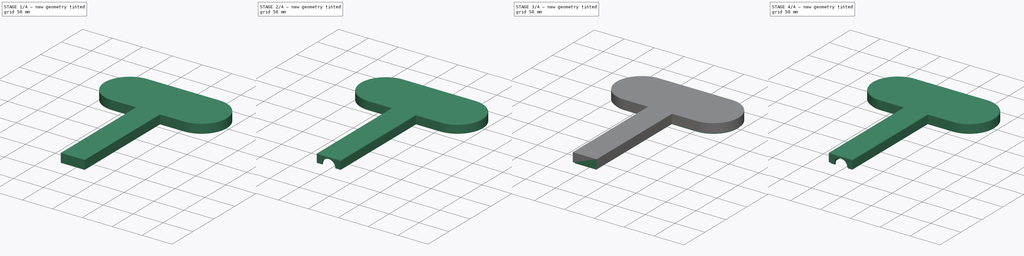
[diagram: build sequence overview — one tinted view per stage of 4, left to right]
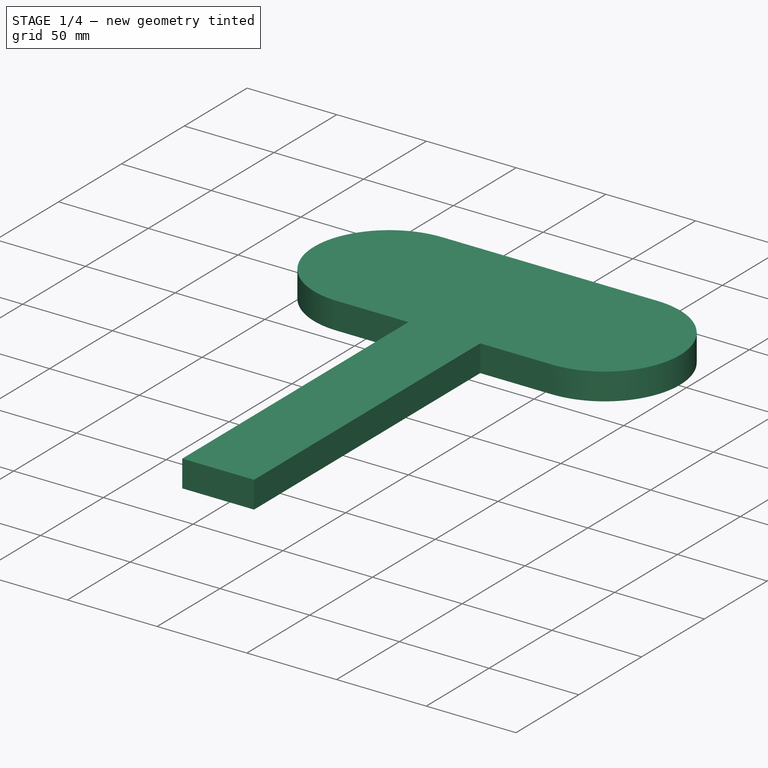
[diagram: stage 1 of 4 — iso view after this stage's code; geometry added in this stage tinted green]
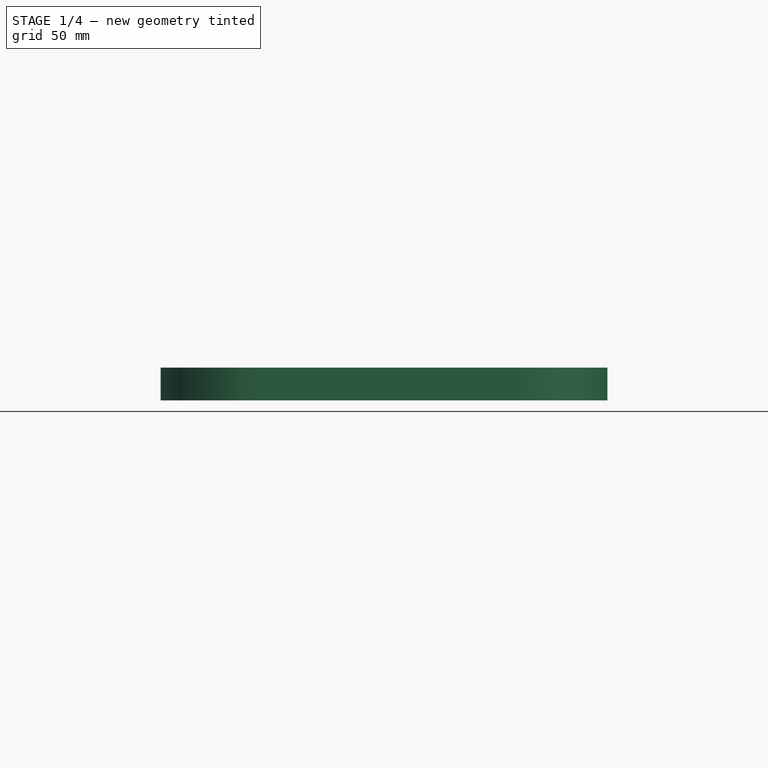
[diagram: stage 1 of 4 — front view after this stage's code; geometry added in this stage tinted green]
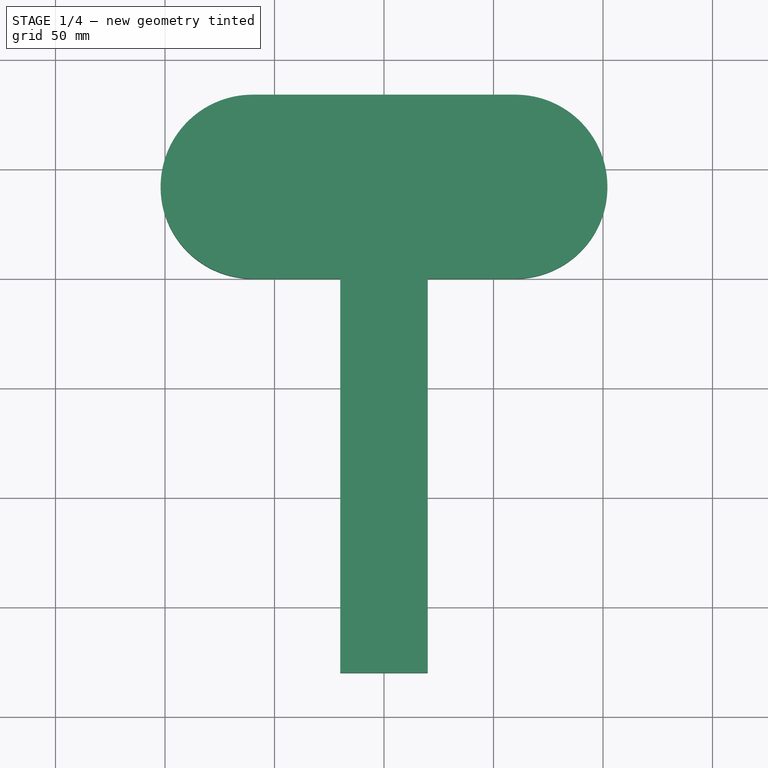
[diagram: stage 1 of 4 — top view after this stage's code; geometry added in this stage tinted green]
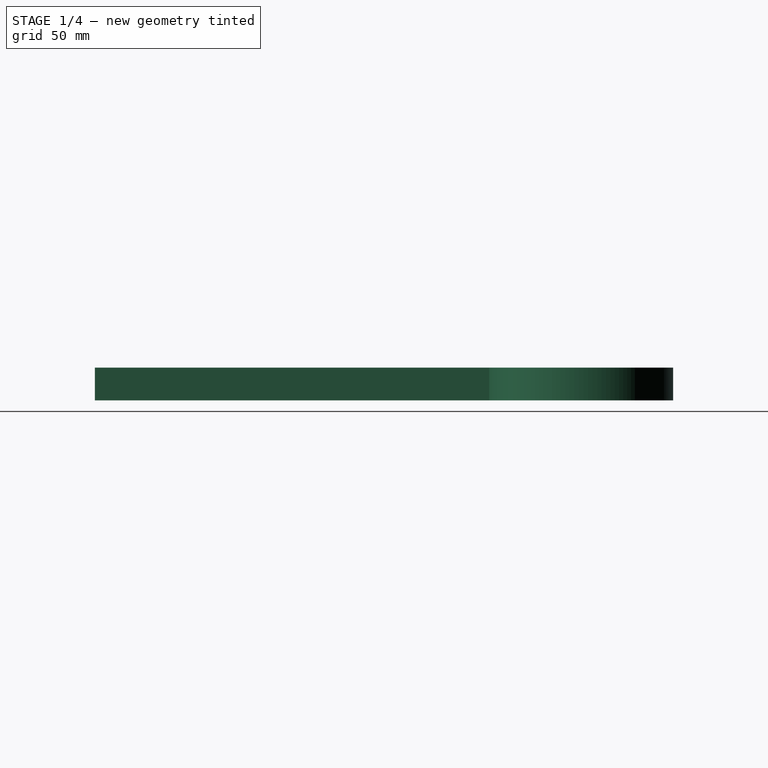
[diagram: stage 1 of 4 — right view after this stage's code; geometry added in this stage tinted green]
FCSTD DOCUMENT  (FreeCAD 0.19R24291 (Git))
Label: 2ch_coil_housing
License: All rights reserved
LicenseURL: http://en.wikipedia.org/wiki/All_rights_reserved
objects: Sketcher::SketchObject×7, PartDesign::Pocket×4, PartDesign::Pad×3, PartDesign::Fillet×2, PartDesign::Body×2
note: 27 computed .brp shape members not serialized (recipe doc carries the construction recipe); baked Part::Feature solids carry a one-line shape summary decoded from their .brp

FEATURE [Sketcher::SketchObject] Sketch003
  FullyConstrained = true
  MapMode = 5
  Support = -> [XY_Plane001]
  sketch-geometry (8):
    g0: LineSegment StartX=-20 StartY=-180 StartZ=0 EndX=20 EndY=-180 EndZ=0
    g1: LineSegment StartX=20 StartY=-180 StartZ=0 EndX=20 EndY=0 EndZ=0
    g2: LineSegment StartX=20 StartY=0 StartZ=0 EndX=60 EndY=0 EndZ=0
    g3: ArcOfCircle CenterX=60 CenterY=42 CenterZ=0 NormalX=0 NormalY=0 NormalZ=1 AngleXU=0 Radius=42 StartAngle=4.71239 EndAngle=7.85398
    g4: LineSegment StartX=60 StartY=84 StartZ=0 EndX=-60 EndY=84 EndZ=0
    g5: ArcOfCircle CenterX=-60 CenterY=42 CenterZ=0 NormalX=0 NormalY=0 NormalZ=1 AngleXU=0 Radius=42 StartAngle=1.5708 EndAngle=4.71239
    g6: LineSegment StartX=-60 StartY=0 StartZ=0 EndX=-20 EndY=0 EndZ=0
    g7: LineSegment StartX=-20 StartY=0 StartZ=0 EndX=-20 EndY=-180 EndZ=0
  constraints (20):
    c: Coincident(g0,g1)
    c: Vertical(g1)
    c: Coincident(g1,g2)
    c: Horizontal(g2)
    c: Tangent(g2,g3) = -1.5708
    c: Horizontal(g4)
    c: Tangent(g4,g5) = -1.5708
    c: Coincident(g6,g7)
    c: Coincident(g7,g0)
    c: Vertical(g7)
    c: Horizontal(g6)
    c: Symmetric(g0,g0,g-2)
    c: Symmetric(g5,g2,g-2)
    c: Tangent(g5,g6) = -1.5708
    c: Tangent(g3,g4) = -1.5708
    c: Radius(g5) = 42
    c: DistanceX(g6,g1) = 40
    c: DistanceY(g0,g1) = 180
    c: Horizontal(g6,g-1)
    c: DistanceX(g4,g4) = 120
FEATURE [PartDesign::Pad] Pad002
  Direction = (1,1,1)
  Length = 15
  Length2 = 100
  Profile = -> Sketch003
  Refine = true
  Type = 0
FEATURE [Sketcher::SketchObject] Sketch004
  FullyConstrained = true
  MapMode = 5
  Support = -> [XY_Plane001]
  sketch-geometry (8):
    g0: LineSegment StartX=-18 StartY=-178 StartZ=0 EndX=18 EndY=-178 EndZ=0
    g1: LineSegment StartX=18 StartY=-178 StartZ=0 EndX=18 EndY=2 EndZ=0
    g2: LineSegment StartX=18 StartY=2 StartZ=0 EndX=60 EndY=2 EndZ=0
    g3: ArcOfCircle CenterX=60 CenterY=42 CenterZ=0 NormalX=0 NormalY=0 NormalZ=1 AngleXU=0 Radius=40 StartAngle=4.71239 EndAngle=7.85398
    g4: LineSegment StartX=60 StartY=82 StartZ=0 EndX=-60 EndY=82 EndZ=0
    g5: ArcOfCircle CenterX=-60 CenterY=42 CenterZ=0 NormalX=0 NormalY=0 NormalZ=1 AngleXU=0 Radius=40 StartAngle=1.5708 EndAngle=4.71239
    g6: LineSegment StartX=-60 StartY=2 StartZ=0 EndX=-18 EndY=2 EndZ=0
    g7: LineSegment StartX=-18 StartY=2 StartZ=0 EndX=-18 EndY=-178 EndZ=0
  constraints (21):
    c: Coincident(g0,g1)
    c: Vertical(g1)
    c: Coincident(g1,g2)
    c: Horizontal(g2)
    c: Tangent(g2,g3) = -1.5708
    c: Horizontal(g4)
    c: Tangent(g4,g5) = -1.5708
    c: Coincident(g6,g7)
    c: Coincident(g7,g0)
    c: Vertical(g7)
    c: Horizontal(g6)
    c: Symmetric(g0,g0,g-2)
    c: Symmetric(g5,g2,g-2)
    c: Tangent(g5,g6) = -1.5708
    c: Tangent(g3,g4) = -1.5708
    c: Radius(g5) = 40
    c: DistanceX(g6,g1) = 36
    c: DistanceY(g0,g1) = 180
    c: Horizontal(g6,g-1)
    c: DistanceX(g4,g4) = 120
    c: DistanceY(g-1,g5) = 2
FEATURE [PartDesign::Pocket] Pocket001
  BaseFeature = -> Pad002
  Length = 13
  Length2 = 100
  Profile = -> Sketch004
  Refine = true
  Reversed = true
  Type = 0
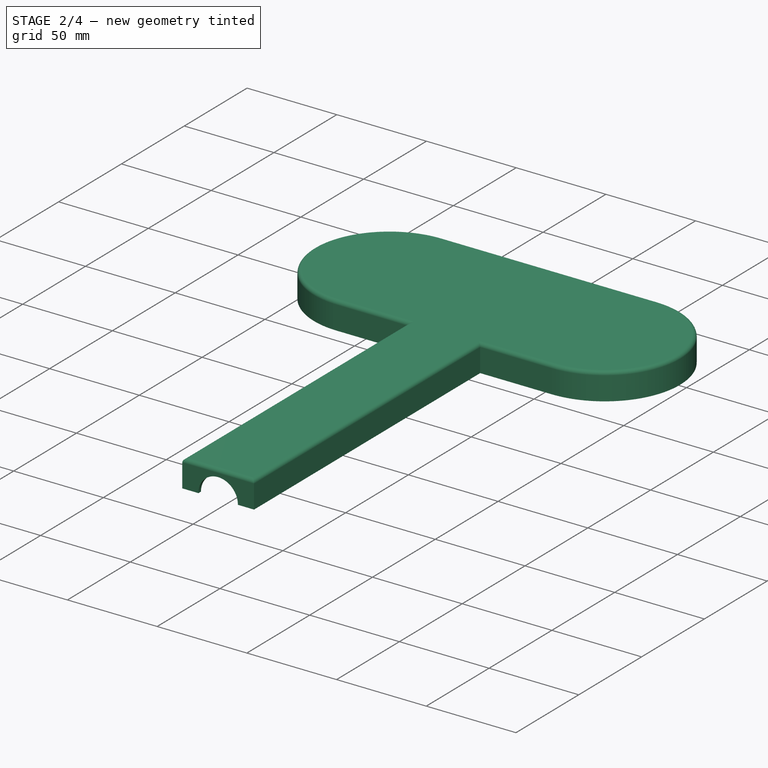
[diagram: stage 2 of 4 — iso view after this stage's code; geometry added in this stage tinted green]
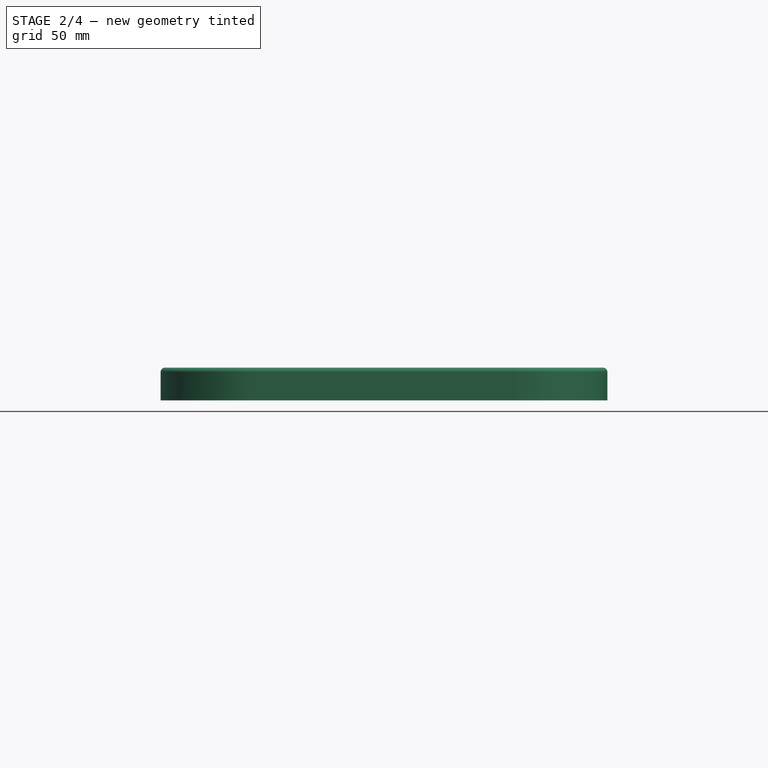
[diagram: stage 2 of 4 — front view after this stage's code; geometry added in this stage tinted green]
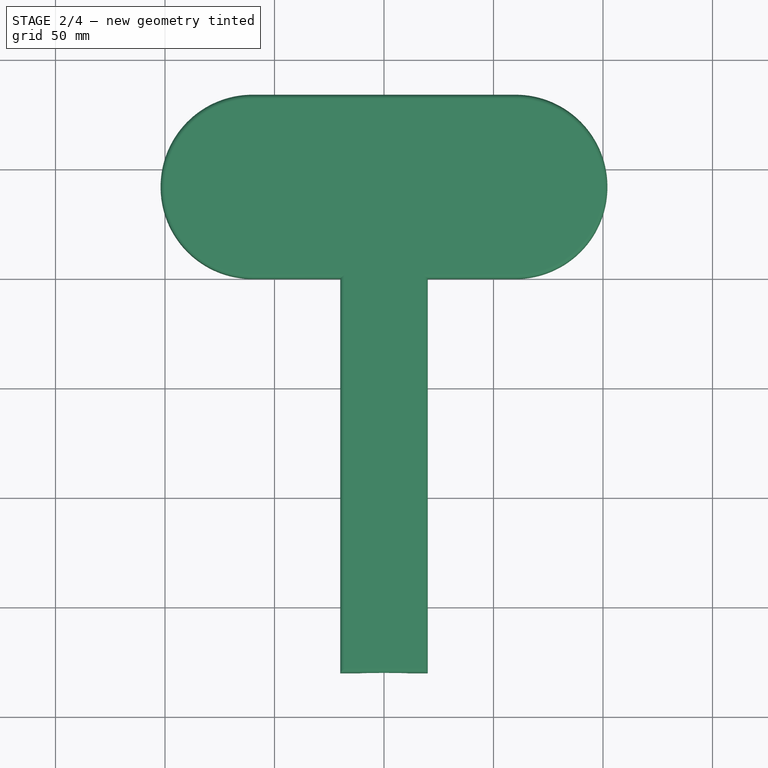
[diagram: stage 2 of 4 — top view after this stage's code; geometry added in this stage tinted green]
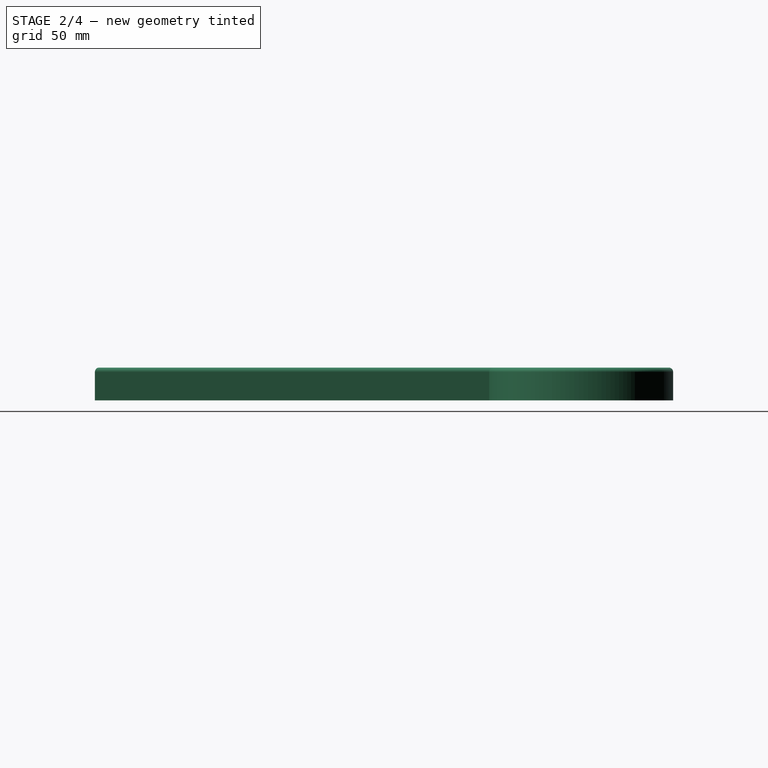
[diagram: stage 2 of 4 — right view after this stage's code; geometry added in this stage tinted green]
FEATURE [PartDesign::Fillet] Fillet001
  Base = -> Pocket001 [Face5]
  BaseFeature = -> Pocket001
  Radius = 2
  Refine = true
  SupportTransform = false
FEATURE [PartDesign::Body] Body  label="base"
  Group = -> [Sketch,Pad,Sketch001,Pad001,Sketch002,Pocket,Fillet,Sketch005,Pocket002]
  Origin = -> Origin
  Tip = -> Pocket002
FEATURE [Sketcher::SketchObject] Sketch006
  AttachmentOffset = pos=(0,0,180) rot=(0,0,1;0rad)
  FullyConstrained = true
  MapMode = 5
  Placement = pos=(0,-180,4e-14) rot=(1,0,0;1.5708rad)
  Support = -> [XZ_Plane001]
  sketch-geometry (1):
    g0: Circle CenterX=0 CenterY=0 CenterZ=0 NormalX=0 NormalY=0 NormalZ=1 AngleXU=0 Radius=11
  constraints (2):
    c: Coincident(g0,g-1)
    c: Radius(g0) = 11
FEATURE [PartDesign::Pocket] Pocket003
  BaseFeature = -> Fillet001
  Length = 5
  Length2 = 100
  Profile = -> Sketch006
  Refine = true
  Type = 0
FEATURE [PartDesign::Body] Body001  label="cover"
  Group = -> [Sketch003,Pad002,Sketch004,Pocket001,Fillet001,Sketch006,Pocket003]
  Origin = -> Origin001
  Placement = pos=(0,0,20) rot=(0,0,1;0rad)
  Tip = -> Pocket003
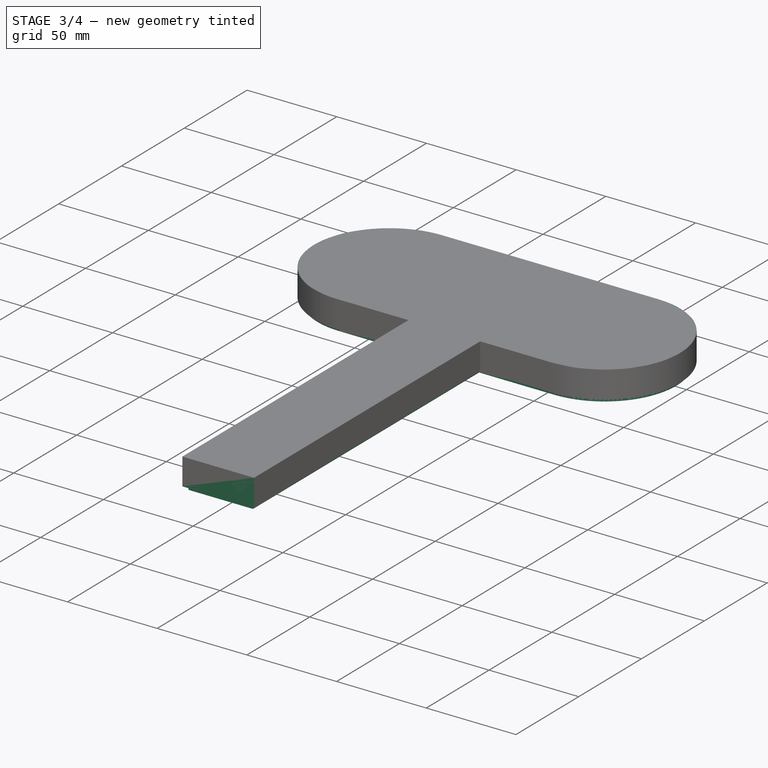
[diagram: stage 3 of 4 — iso view after this stage's code; geometry added in this stage tinted green]
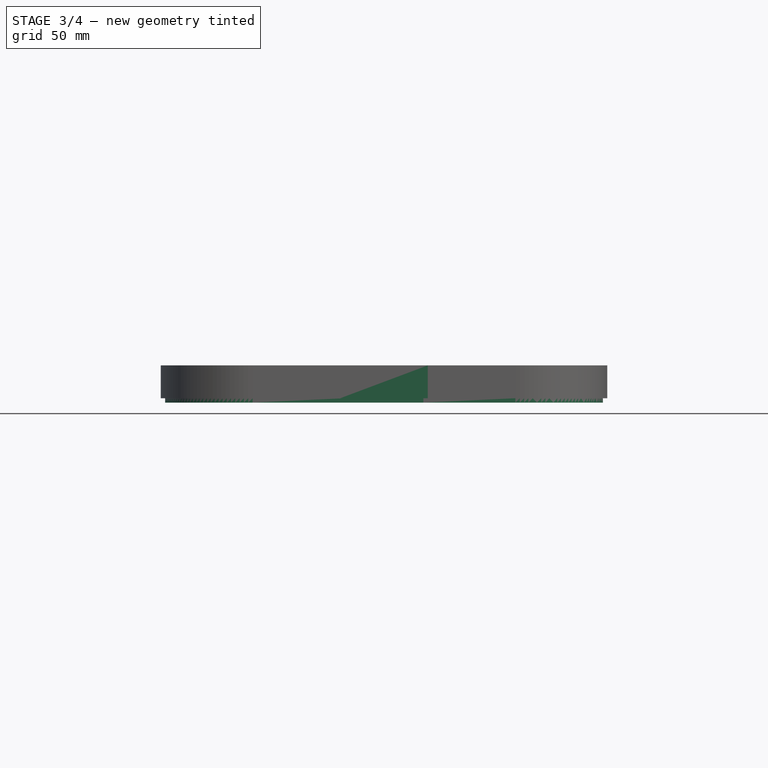
[diagram: stage 3 of 4 — front view after this stage's code; geometry added in this stage tinted green]
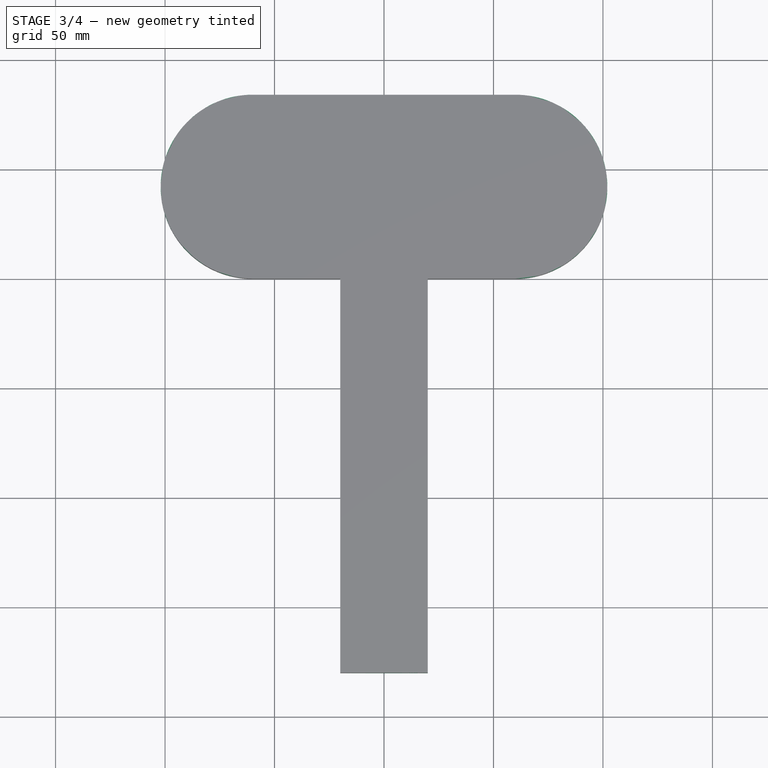
[diagram: stage 3 of 4 — top view after this stage's code; geometry added in this stage tinted green]
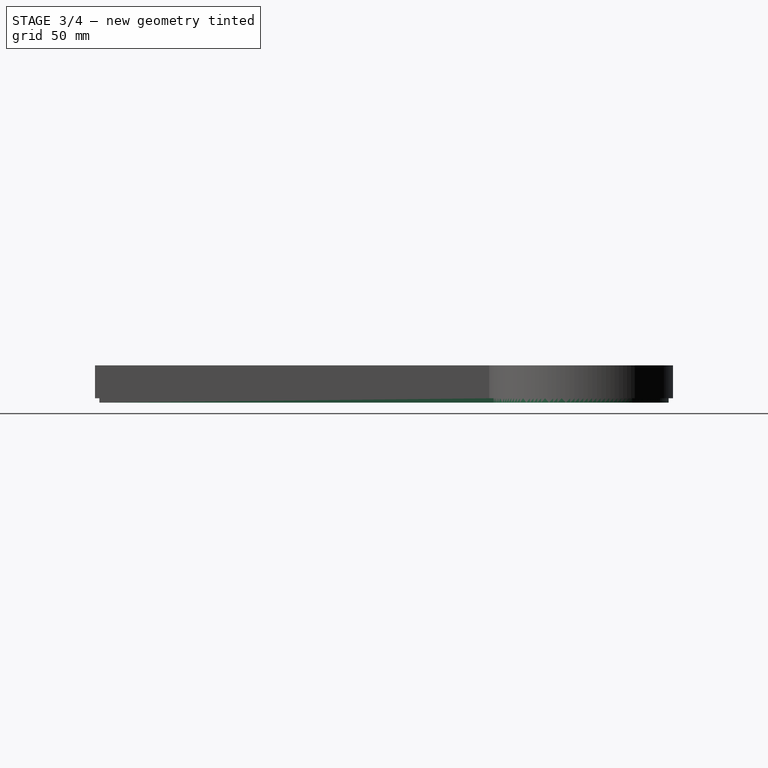
[diagram: stage 3 of 4 — right view after this stage's code; geometry added in this stage tinted green]
FEATURE [Sketcher::SketchObject] Sketch
  FullyConstrained = true
  MapMode = 5
  Support = -> [XY_Plane]
  sketch-geometry (8):
    g0: LineSegment StartX=-20 StartY=-180 StartZ=0 EndX=20 EndY=-180 EndZ=0
    g1: LineSegment StartX=20 StartY=-180 StartZ=0 EndX=20 EndY=0 EndZ=0
    g2: LineSegment StartX=20 StartY=0 StartZ=0 EndX=60 EndY=0 EndZ=0
    g3: ArcOfCircle CenterX=60 CenterY=42 CenterZ=0 NormalX=0 NormalY=0 NormalZ=1 AngleXU=0 Radius=42 StartAngle=4.71239 EndAngle=7.85398
    g4: LineSegment StartX=60 StartY=84 StartZ=0 EndX=-60 EndY=84 EndZ=0
    g5: ArcOfCircle CenterX=-60 CenterY=42 CenterZ=0 NormalX=0 NormalY=0 NormalZ=1 AngleXU=0 Radius=42 StartAngle=1.5708 EndAngle=4.71239
    g6: LineSegment StartX=-60 StartY=0 StartZ=0 EndX=-20 EndY=0 EndZ=0
    g7: LineSegment StartX=-20 StartY=0 StartZ=0 EndX=-20 EndY=-180 EndZ=0
  constraints (20):
    c: Coincident(g0,g1)
    c: Vertical(g1)
    c: Coincident(g1,g2)
    c: Horizontal(g2)
    c: Tangent(g2,g3) = -1.5708
    c: Horizontal(g4)
    c: Tangent(g4,g5) = -1.5708
    c: Coincident(g6,g7)
    c: Coincident(g7,g0)
    c: Vertical(g7)
    c: Horizontal(g6)
    c: Symmetric(g0,g0,g-2)
    c: Symmetric(g5,g2,g-2)
    c: Tangent(g5,g6) = -1.5708
    c: Tangent(g3,g4) = -1.5708
    c: Radius(g5) = 42
    c: DistanceX(g6,g1) = 40
    c: DistanceY(g0,g1) = 180
    c: Horizontal(g6,g-1)
    c: DistanceX(g4,g4) = 120
FEATURE [PartDesign::Pad] Pad
  Direction = (1,1,1)
  Length = 15
  Length2 = 100
  Profile = -> Sketch
  Refine = true
  Type = 0
FEATURE [Sketcher::SketchObject] Sketch001
  FullyConstrained = true
  MapMode = 5
  Support = -> [XY_Plane]
  sketch-geometry (8):
    g0: LineSegment StartX=-18 StartY=-178 StartZ=0 EndX=18 EndY=-178 EndZ=0
    g1: LineSegment StartX=18 StartY=-178 StartZ=0 EndX=18 EndY=2 EndZ=0
    g2: LineSegment StartX=18 StartY=2 StartZ=0 EndX=60 EndY=2 EndZ=0
    g3: ArcOfCircle CenterX=60 CenterY=42 CenterZ=0 NormalX=0 NormalY=0 NormalZ=1 AngleXU=0 Radius=40 StartAngle=4.71239 EndAngle=7.85398
    g4: LineSegment StartX=60 StartY=82 StartZ=0 EndX=-60 EndY=82 EndZ=0
    g5: ArcOfCircle CenterX=-60 CenterY=42 CenterZ=0 NormalX=0 NormalY=0 NormalZ=1 AngleXU=0 Radius=40 StartAngle=1.5708 EndAngle=4.71239
    g6: LineSegment StartX=-60 StartY=2 StartZ=0 EndX=-18 EndY=2 EndZ=0
    g7: LineSegment StartX=-18 StartY=2 StartZ=0 EndX=-18 EndY=-178 EndZ=0
  constraints (21):
    c: Coincident(g0,g1)
    c: Vertical(g1)
    c: Coincident(g1,g2)
    c: Horizontal(g2)
    c: Tangent(g2,g3) = -1.5708
    c: Horizontal(g4)
    c: Tangent(g4,g5) = -1.5708
    c: Coincident(g6,g7)
    c: Coincident(g7,g0)
    c: Vertical(g7)
    c: Horizontal(g6)
    c: Symmetric(g0,g0,g-2)
    c: Symmetric(g5,g2,g-2)
    c: Tangent(g5,g6) = -1.5708
    c: Tangent(g3,g4) = -1.5708
    c: Radius(g5) = 40
    c: DistanceX(g6,g1) = 36
    c: DistanceY(g0,g1) = 180
    c: Horizontal(g6,g-1)
    c: DistanceX(g4,g4) = 120
    c: DistanceY(g-1,g5) = 2
FEATURE [PartDesign::Pad] Pad001
  BaseFeature = -> Pad
  Direction = (1,1,1)
  Length = 2
  Length2 = 100
  Profile = -> Sketch001
  Refine = true
  Reversed = true
  Type = 0
FEATURE [Sketcher::SketchObject] Sketch002
  AttachmentOffset = pos=(0,0,-2) rot=(0,0,1;0rad)
  FullyConstrained = true
  MapMode = 5
  Placement = pos=(0,0,-2) rot=(0,0,1;0rad)
  Support = -> [XY_Plane]
  sketch-geometry (8):
    g0: LineSegment StartX=-17 StartY=-176 StartZ=0 EndX=17 EndY=-176 EndZ=0
    g1: LineSegment StartX=17 StartY=-176 StartZ=0 EndX=17 EndY=4 EndZ=0
    g2: LineSegment StartX=17 StartY=4 StartZ=0 EndX=60 EndY=4 EndZ=0
    g3: ArcOfCircle CenterX=60 CenterY=42 CenterZ=0 NormalX=0 NormalY=0 NormalZ=1 AngleXU=0 Radius=38 StartAngle=4.71239 EndAngle=7.85398
    g4: LineSegment StartX=60 StartY=80 StartZ=0 EndX=-60 EndY=80 EndZ=0
    g5: ArcOfCircle CenterX=-60 CenterY=42 CenterZ=0 NormalX=0 NormalY=0 NormalZ=1 AngleXU=0 Radius=38 StartAngle=1.5708 EndAngle=4.71239
    g6: LineSegment StartX=-60 StartY=4 StartZ=0 EndX=-17 EndY=4 EndZ=0
    g7: LineSegment StartX=-17 StartY=4 StartZ=0 EndX=-17 EndY=-176 EndZ=0
  constraints (21):
    c: Coincident(g0,g1)
    c: Vertical(g1)
    c: Coincident(g1,g2)
    c: Horizontal(g2)
    c: Tangent(g2,g3) = -1.5708
    c: Horizontal(g4)
    c: Tangent(g4,g5) = -1.5708
    c: Coincident(g6,g7)
    c: Coincident(g7,g0)
    c: Vertical(g7)
    c: Horizontal(g6)
    c: Symmetric(g0,g0,g-2)
    c: Symmetric(g5,g2,g-2)
    c: Tangent(g5,g6) = -1.5708
    c: Tangent(g3,g4) = -1.5708
    c: Radius(g5) = 38
    c: DistanceX(g6,g1) = 34
    c: DistanceY(g0,g1) = 180
    c: Horizontal(g6,g-1)
    c: DistanceX(g4,g4) = 120
    c: DistanceY(g-1,g5) = 4
FEATURE [PartDesign::Pocket] Pocket
  BaseFeature = -> Pad001
  Length = 15
  Length2 = 100
  Profile = -> Sketch002
  Refine = true
  Reversed = true
  Type = 0
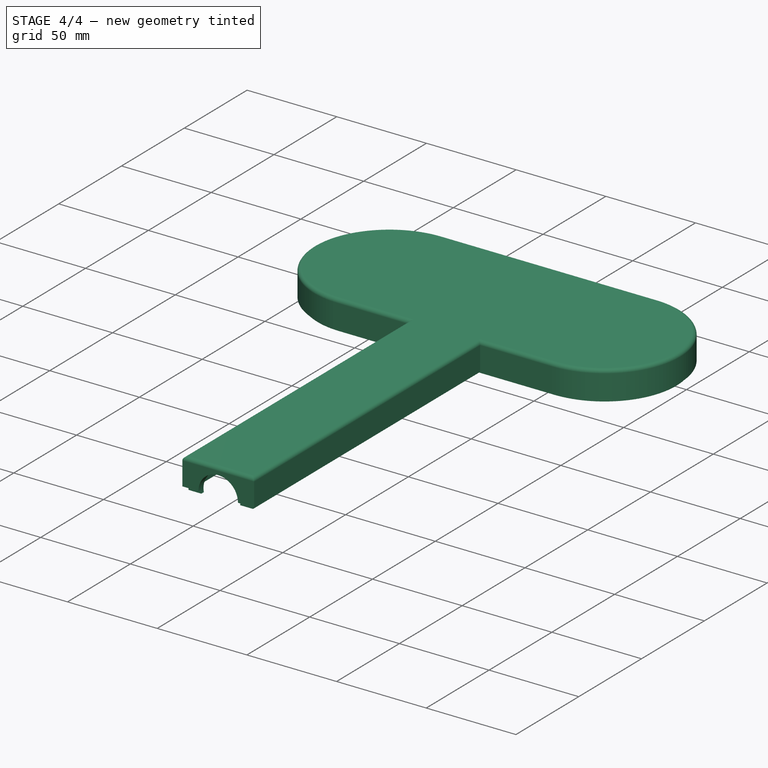
[diagram: stage 4 of 4 — iso view after this stage's code; geometry added in this stage tinted green]
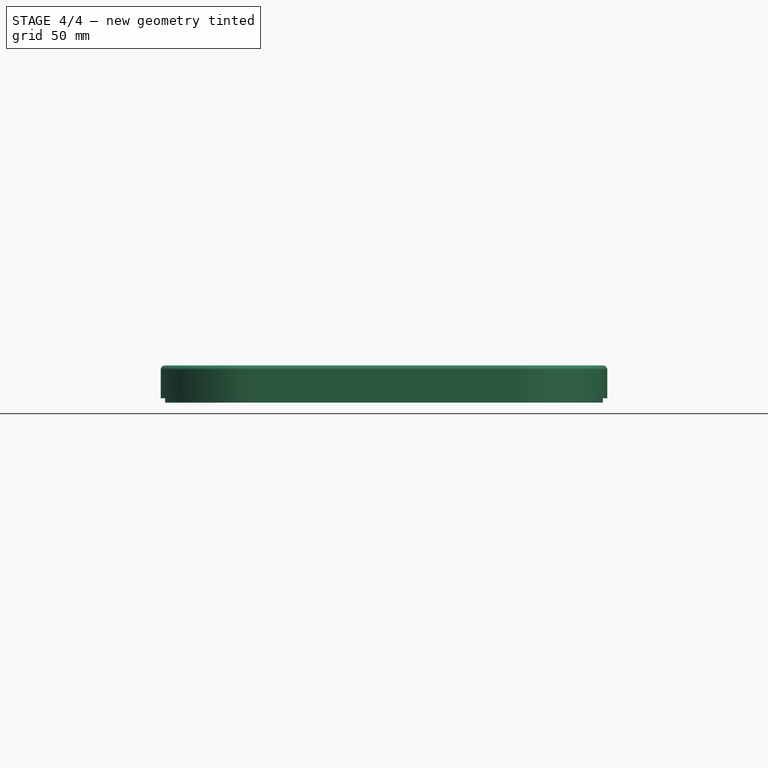
[diagram: stage 4 of 4 — front view after this stage's code; geometry added in this stage tinted green]
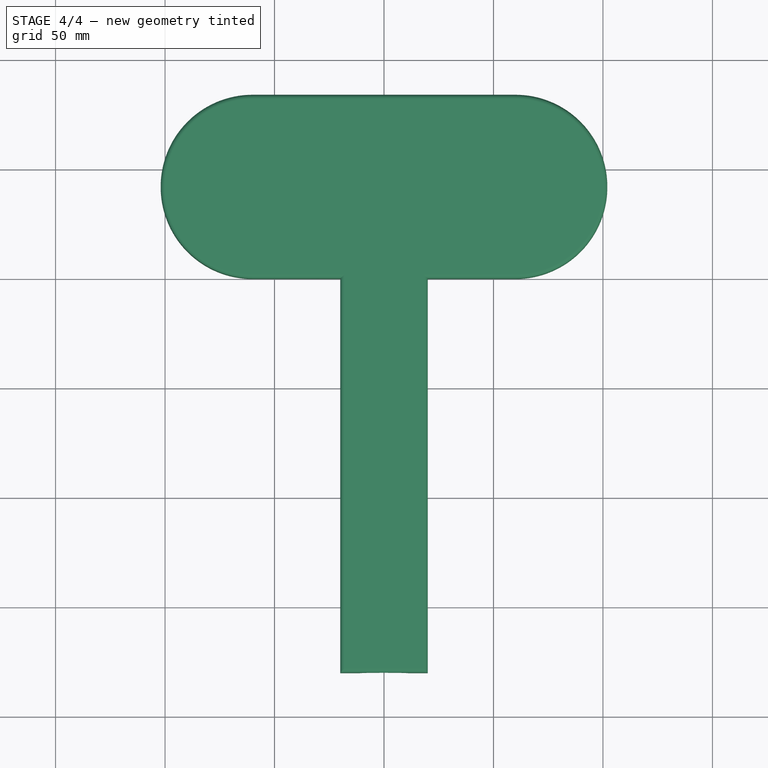
[diagram: stage 4 of 4 — top view after this stage's code; geometry added in this stage tinted green]
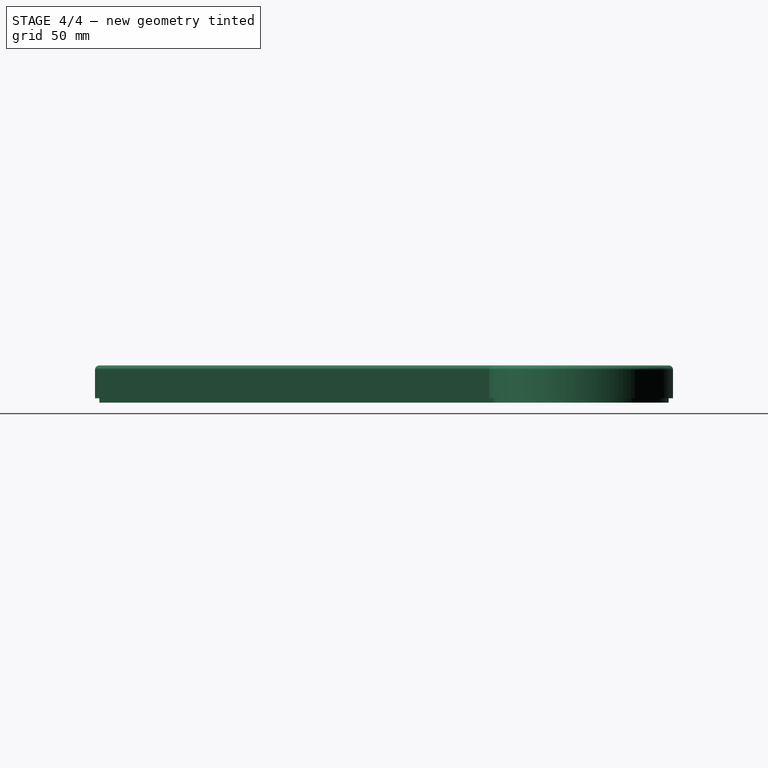
[diagram: stage 4 of 4 — right view after this stage's code; geometry added in this stage tinted green]
FEATURE [PartDesign::Fillet] Fillet
  Base = -> Pocket [Face5]
  BaseFeature = -> Pocket
  Radius = 2
  Refine = true
  SupportTransform = false
FEATURE [Sketcher::SketchObject] Sketch005
  AttachmentOffset = pos=(0,0,180) rot=(0,0,1;0rad)
  FullyConstrained = true
  MapMode = 5
  Placement = pos=(0,-180,4e-14) rot=(1,0,0;1.5708rad)
  Support = -> [XZ_Plane]
  sketch-geometry (1):
    g0: Circle CenterX=0 CenterY=0 CenterZ=0 NormalX=0 NormalY=0 NormalZ=1 AngleXU=0 Radius=11
  constraints (2):
    c: Coincident(g0,g-1)
    c: Radius(g0) = 11
FEATURE [PartDesign::Pocket] Pocket002
  BaseFeature = -> Fillet
  Length = 5
  Length2 = 100
  Profile = -> Sketch005
  Refine = true
  Type = 0
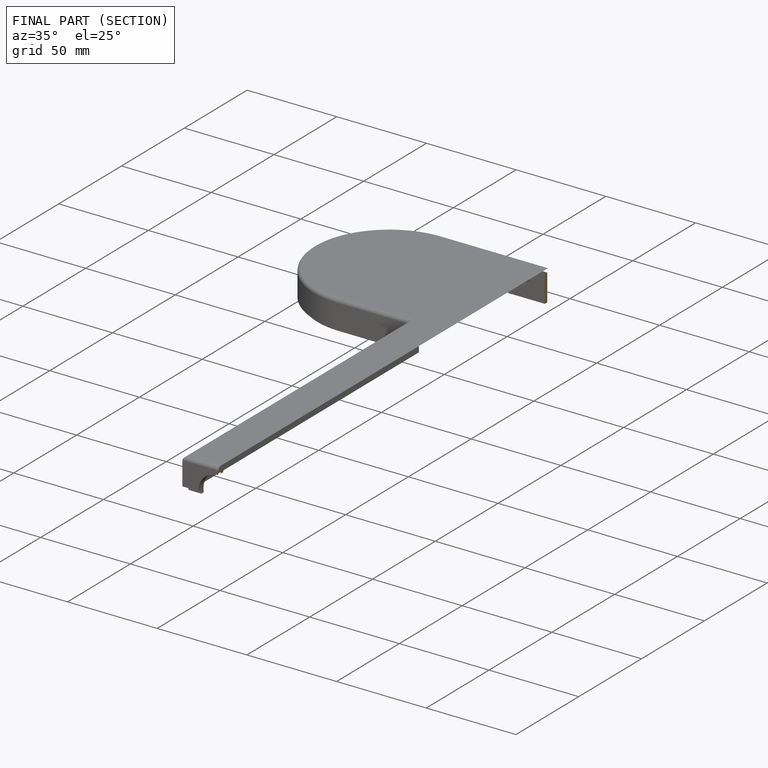
[diagram: finished part — half-section view (interior)]
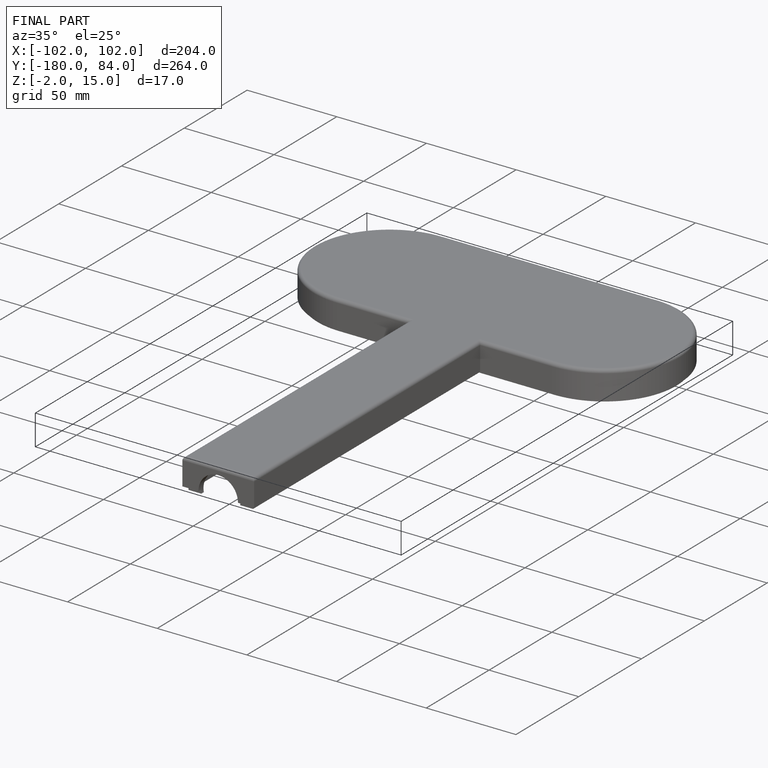
[diagram: finished part — iso view with bounding-box wireframe]
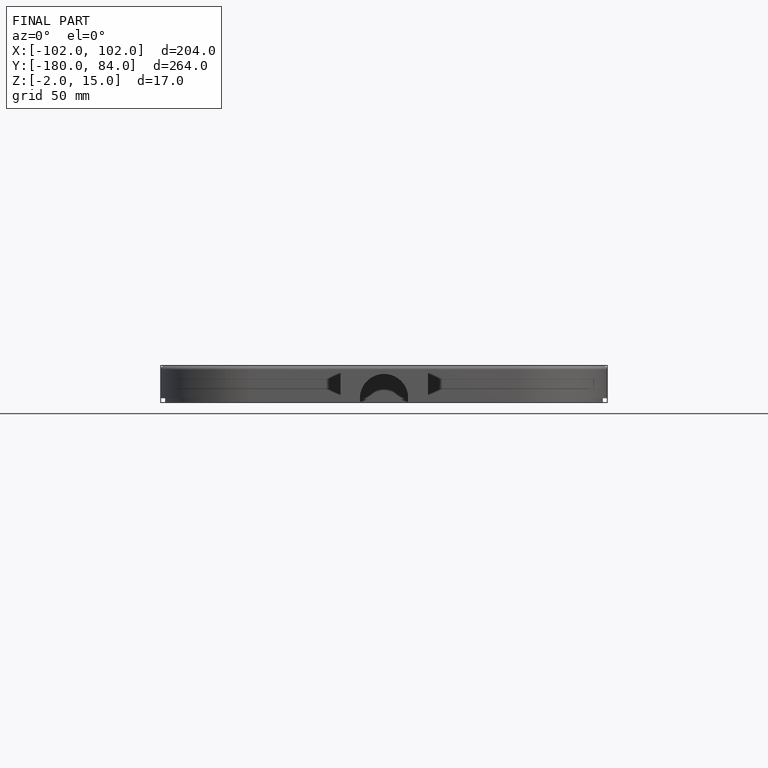
[diagram: finished part — front view with bounding-box wireframe]
